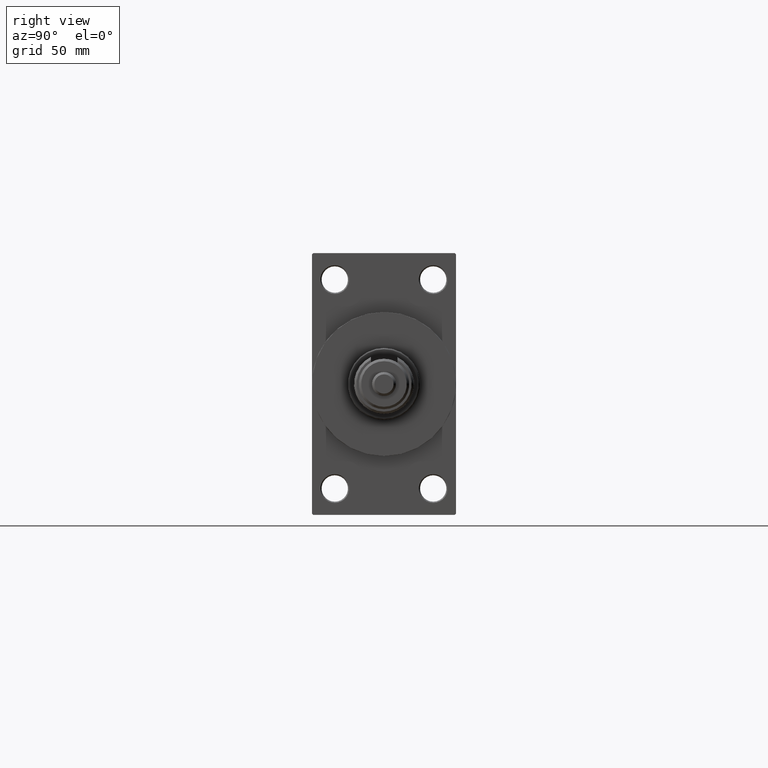
[diagram: clean part render]
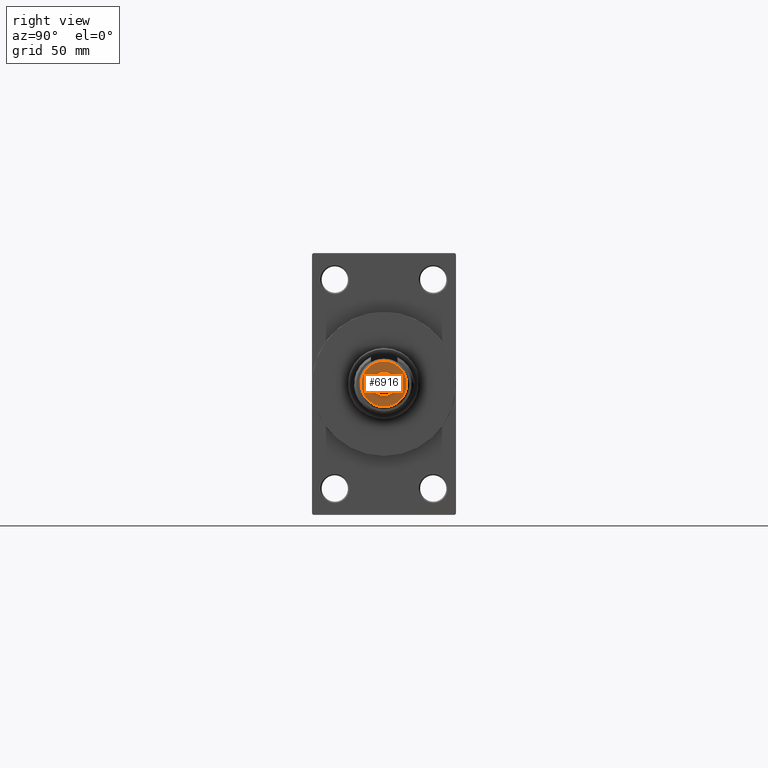
[diagram: same view with one face highlighted and labeled with its STEP entity id]
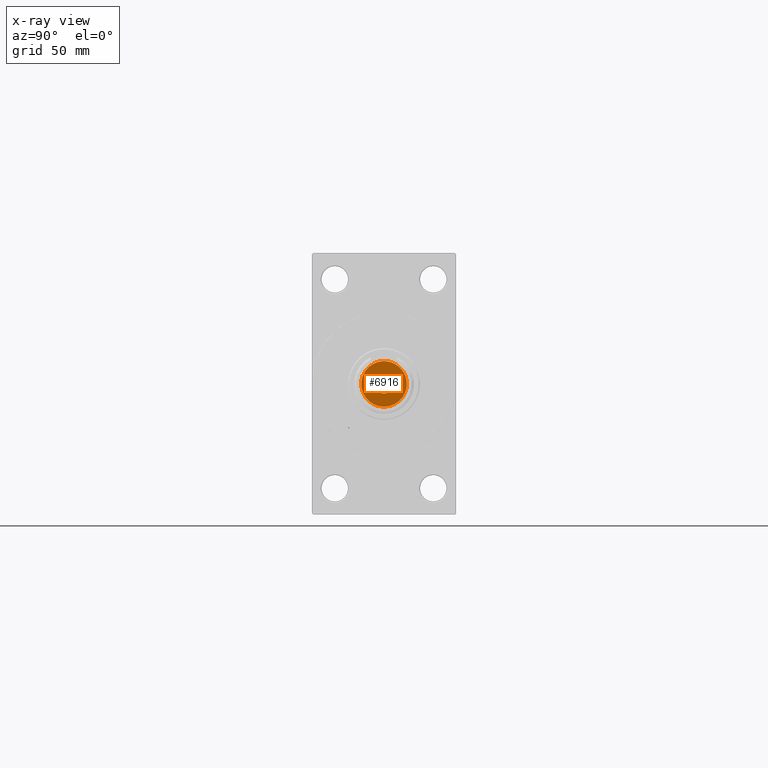
[diagram: x-ray of the same camera — body ghosted, the highlighted face saturated]
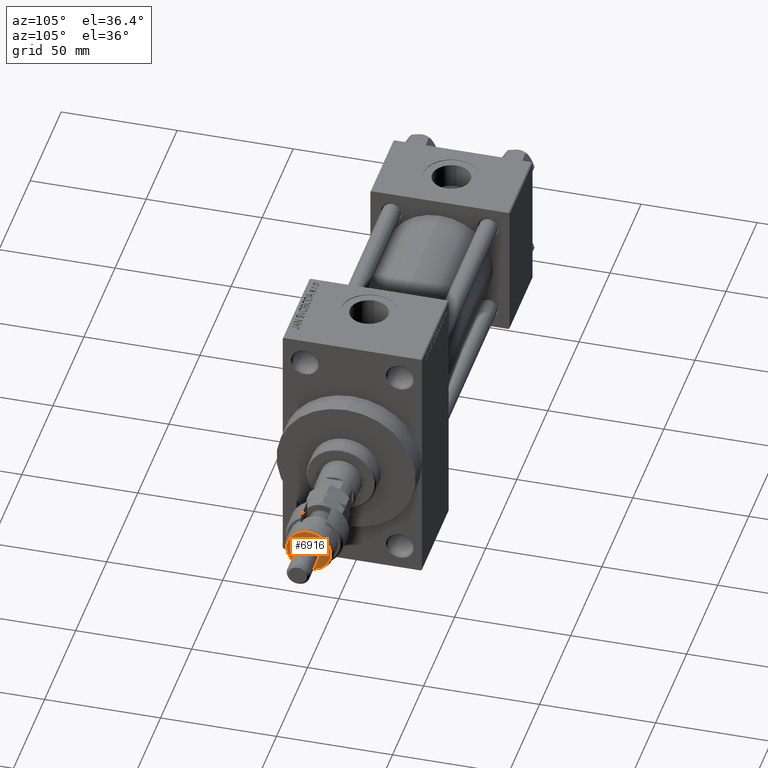
[diagram: same view with one face highlighted and labeled with its STEP entity id]
A machine part, right view. The second image highlights one B-rep face of the part: STEP entity #6916.
The next image is the same camera in x-ray: the body ghosted, the highlighted face saturated — about 0% of this face is hidden behind the body in this view.
A second angle (auxiliary view) of the same face is appended — the face is thin or edge-on in the first view.
In plain terms, the highlighted planar face has unit normal (1, 0, 0).
Its self-contained STEP definition (entity closure, byte-faithful):
#913 = FACE_BOUND ( 'NONE', #45553, .T. ) ;
#1819 = VERTEX_POINT ( 'NONE', #6751 ) ;
#4188 = EDGE_CURVE ( 'NONE', #49967, #7072, #45971, .T. ) ;
#6751 = CARTESIAN_POINT ( 'NONE',  ( 4.000000000000000000, 4.898587196589412829E-16, 19.00000000000000000 ) ) ;
#6916 = ADVANCED_FACE ( 'NONE', ( #35568, #913 ), #19645, .T. ) ;
#7072 = VERTEX_POINT ( 'NONE', #37791 ) ;
#7989 = DIRECTION ( 'NONE',  ( 0.000000000000000000, 0.000000000000000000, 1.000000000000000000 ) ) ;
#11242 = ORIENTED_EDGE ( 'NONE', *, *, #25332, .T. ) ;
#11791 = DIRECTION ( 'NONE',  ( 0.000000000000000000, 0.000000000000000000, 1.000000000000000000 ) ) ;
#13046 = CARTESIAN_POINT ( 'NONE',  ( -9.500000000000001776, 0.000000000000000000, 19.00000000000000000 ) ) ;
#14296 = DIRECTION ( 'NONE',  ( 1.000000000000000000, 0.000000000000000000, 0.000000000000000000 ) ) ;
#15311 = CIRCLE ( 'NONE', #33071, 4.000000000000000000 ) ;
#15454 = AXIS2_PLACEMENT_3D ( 'NONE', #37054, #25679, #14296 ) ;
#16100 = DIRECTION ( 'NONE',  ( 1.000000000000000000, 0.000000000000000000, -0.000000000000000000 ) ) ;
#19645 = PLANE ( 'NONE',  #37204 ) ;
#22913 = DIRECTION ( 'NONE',  ( 1.000000000000000000, 0.000000000000000000, 0.000000000000000000 ) ) ;
#23242 = DIRECTION ( 'NONE',  ( 0.000000000000000000, 0.000000000000000000, 1.000000000000000000 ) ) ;
#23334 = DIRECTION ( 'NONE',  ( 1.000000000000000000, 0.000000000000000000, 0.000000000000000000 ) ) ;
#23354 = ORIENTED_EDGE ( 'NONE', *, *, #41447, .F. ) ;
#24830 = ORIENTED_EDGE ( 'NONE', *, *, #4188, .T. ) ;
#25330 = CIRCLE ( 'NONE', #35836, 9.500000000000001776 ) ;
#25332 = EDGE_CURVE ( 'NONE', #7072, #49967, #25330, .T. ) ;
#25679 = DIRECTION ( 'NONE',  ( 0.000000000000000000, 0.000000000000000000, 1.000000000000000000 ) ) ;
#30252 = CARTESIAN_POINT ( 'NONE',  ( 0.000000000000000000, 0.000000000000000000, 19.00000000000000000 ) ) ;
#31076 = DIRECTION ( 'NONE',  ( 1.000000000000000000, 0.000000000000000000, 0.000000000000000000 ) ) ;
#32388 = CIRCLE ( 'NONE', #15454, 4.000000000000000000 ) ;
#33071 = AXIS2_PLACEMENT_3D ( 'NONE', #30252, #11791, #22913 ) ;
#33084 = VERTEX_POINT ( 'NONE', #40866 ) ;
#35568 = FACE_OUTER_BOUND ( 'NONE', #37581, .T. ) ;
#35836 = AXIS2_PLACEMENT_3D ( 'NONE', #46257, #23242, #31076 ) ;
#36269 = AXIS2_PLACEMENT_3D ( 'NONE', #49154, #42807, #23334 ) ;
#37054 = CARTESIAN_POINT ( 'NONE',  ( 0.000000000000000000, 0.000000000000000000, 19.00000000000000000 ) ) ;
#37204 = AXIS2_PLACEMENT_3D ( 'NONE', #39116, #7989, #16100 ) ;
#37486 = ORIENTED_EDGE ( 'NONE', *, *, #44843, .F. ) ;
#37581 = EDGE_LOOP ( 'NONE', ( #24830, #11242 ) ) ;
#37791 = CARTESIAN_POINT ( 'NONE',  ( 9.500000000000001776, 1.224646799147353256E-15, 19.00000000000000000 ) ) ;
#39116 = CARTESIAN_POINT ( 'NONE',  ( 0.000000000000000000, 0.000000000000000000, 19.00000000000000000 ) ) ;
#40866 = CARTESIAN_POINT ( 'NONE',  ( -4.000000000000000000, 0.000000000000000000, 19.00000000000000000 ) ) ;
#41447 = EDGE_CURVE ( 'NONE', #1819, #33084, #15311, .T. ) ;
#42807 = DIRECTION ( 'NONE',  ( 0.000000000000000000, 0.000000000000000000, 1.000000000000000000 ) ) ;
#44843 = EDGE_CURVE ( 'NONE', #33084, #1819, #32388, .T. ) ;
#45553 = EDGE_LOOP ( 'NONE', ( #37486, #23354 ) ) ;
#45971 = CIRCLE ( 'NONE', #36269, 9.500000000000001776 ) ;
#46257 = CARTESIAN_POINT ( 'NONE',  ( 0.000000000000000000, 0.000000000000000000, 19.00000000000000000 ) ) ;
#49154 = CARTESIAN_POINT ( 'NONE',  ( 0.000000000000000000, 0.000000000000000000, 19.00000000000000000 ) ) ;
#49967 = VERTEX_POINT ( 'NONE', #13046 ) ;